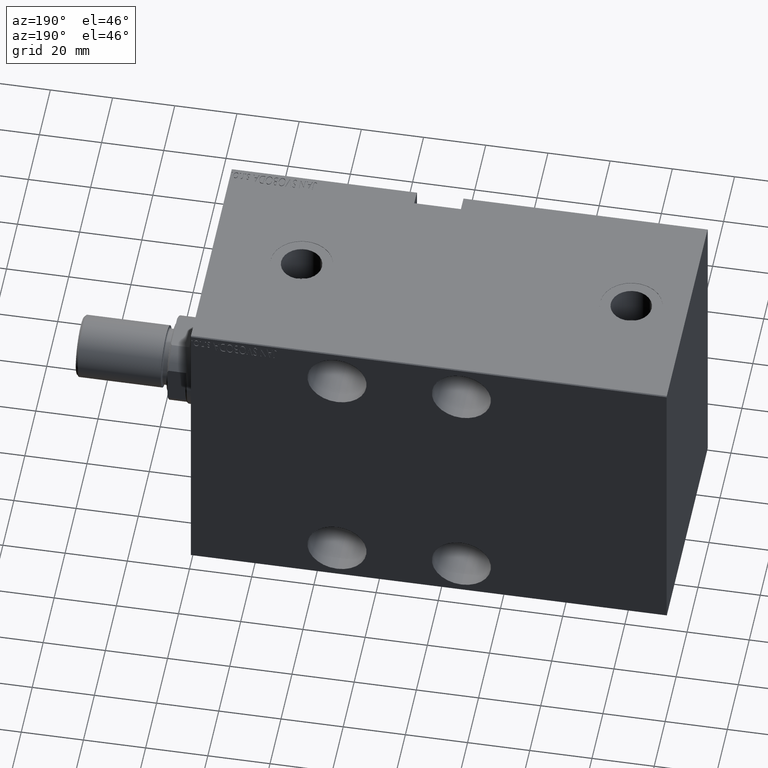
[diagram: clean part render]
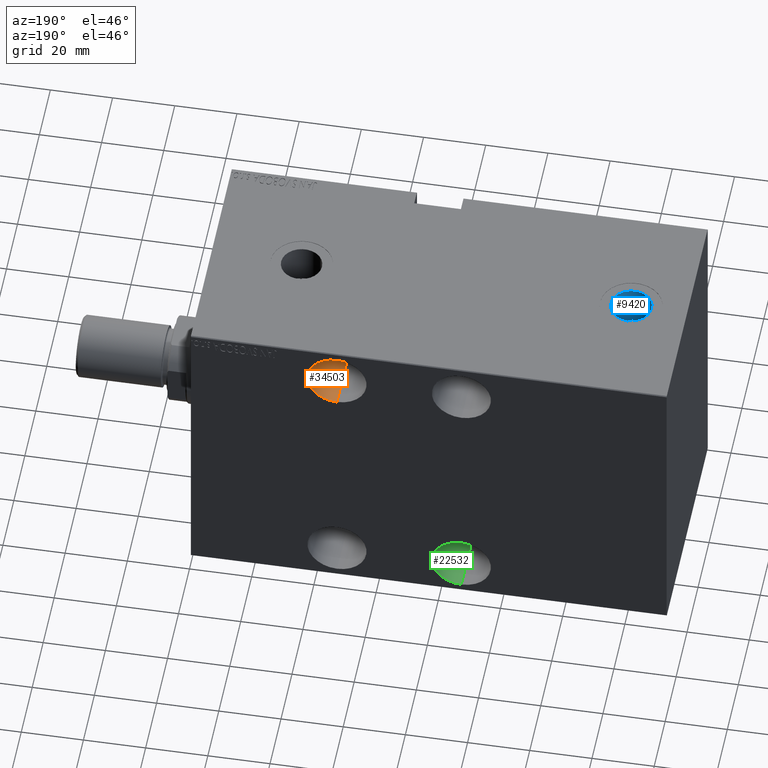
[diagram: same view with three faces highlighted in distinct colors, each labeled with its STEP entity id]
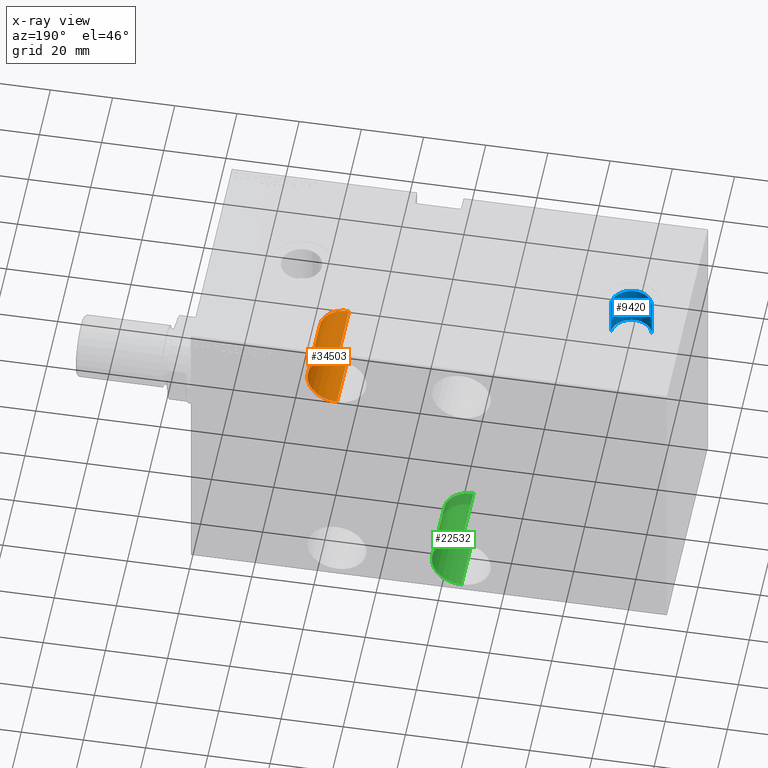
[diagram: x-ray of the same camera — body ghosted, the three highlighted faces saturated]
A machine part, auxiliary view with three faces highlighted in distinct colors.
The next image is the same camera in x-ray (body ghosted, the three faces saturated) — at least one of them is partly hidden behind the body in this view.
Their STEP definitions:

[orange] entity #34503 — the highlighted cylindrical surface (edge-blend (fillet) strip) has radius 9.5 mm, axis along (-0, 1, 0).
#110 = CYLINDRICAL_SURFACE ( 'NONE', #27006, 9.500000000000001776 ) ;
#765 = CARTESIAN_POINT ( 'NONE',  ( 47.00000000000000711, -15.49999999999999289, 38.00000000000001421 ) ) ;
#929 = CARTESIAN_POINT ( 'NONE',  ( 47.00000000000000711, -15.49999999999999289, 47.50000000000001421 ) ) ;
#1343 = DIRECTION ( 'NONE',  ( 0.000000000000000000, 0.000000000000000000, -1.000000000000000000 ) ) ;
#2840 = ORIENTED_EDGE ( 'NONE', *, *, #4772, .F. ) ;
#3268 = VERTEX_POINT ( 'NONE', #19837 ) ;
#4758 = CARTESIAN_POINT ( 'NONE',  ( 47.00000000000000711, -15.49999999999999289, 28.50000000000001066 ) ) ;
#4772 = EDGE_CURVE ( 'NONE', #20072, #21741, #37910, .T. ) ;
#5071 = VERTEX_POINT ( 'NONE', #12943 ) ;
#7201 = CARTESIAN_POINT ( 'NONE',  ( 47.00000000000000711, -15.49999999999999289, 28.50000000000001066 ) ) ;
#7413 = CARTESIAN_POINT ( 'NONE',  ( 47.00000000000000711, -15.49999999999999289, 38.00000000000001421 ) ) ;
#7469 = VECTOR ( 'NONE', #14361, 1000.000000000000000 ) ;
#11371 = CARTESIAN_POINT ( 'NONE',  ( 47.00000000000000711, -37.49999999999999289, 28.50000000000001066 ) ) ;
#12943 = CARTESIAN_POINT ( 'NONE',  ( 47.00000000000000711, -15.49999999999999289, 47.50000000000001421 ) ) ;
#14229 = DIRECTION ( 'NONE',  ( -0.000000000000000000, -1.000000000000000000, -0.000000000000000000 ) ) ;
#14361 = DIRECTION ( 'NONE',  ( -0.000000000000000000, -1.000000000000000000, -0.000000000000000000 ) ) ;
#15176 = ORIENTED_EDGE ( 'NONE', *, *, #24241, .T. ) ;
#18332 = CIRCLE ( 'NONE', #40570, 9.500000000000001776 ) ;
#19790 = ORIENTED_EDGE ( 'NONE', *, *, #37040, .F. ) ;
#19837 = CARTESIAN_POINT ( 'NONE',  ( 47.00000000000000711, -37.49999999999999289, 47.50000000000001421 ) ) ;
#20072 = VERTEX_POINT ( 'NONE', #4758 ) ;
#21378 = EDGE_LOOP ( 'NONE', ( #19790, #42562, #15176, #2840 ) ) ;
#21741 = VERTEX_POINT ( 'NONE', #11371 ) ;
#23180 = AXIS2_PLACEMENT_3D ( 'NONE', #31980, #35343, #25037 ) ;
#24241 = EDGE_CURVE ( 'NONE', #3268, #21741, #36767, .T. ) ;
#24767 = DIRECTION ( 'NONE',  ( 0.000000000000000000, 0.000000000000000000, -1.000000000000000000 ) ) ;
#25037 = DIRECTION ( 'NONE',  ( 0.000000000000000000, 0.000000000000000000, -1.000000000000000000 ) ) ;
#27006 = AXIS2_PLACEMENT_3D ( 'NONE', #765, #14229, #24767 ) ;
#27015 = EDGE_CURVE ( 'NONE', #5071, #3268, #35459, .T. ) ;
#27511 = VECTOR ( 'NONE', #28063, 1000.000000000000000 ) ;
#28063 = DIRECTION ( 'NONE',  ( -0.000000000000000000, -1.000000000000000000, -0.000000000000000000 ) ) ;
#31980 = CARTESIAN_POINT ( 'NONE',  ( 47.00000000000000711, -37.49999999999999289, 38.00000000000001421 ) ) ;
#34503 = ADVANCED_FACE ( 'NONE', ( #38432 ), #110, .F. ) ;
#35343 = DIRECTION ( 'NONE',  ( 0.000000000000000000, -1.000000000000000000, 0.000000000000000000 ) ) ;
#35459 = LINE ( 'NONE', #929, #27511 ) ;
#36767 = CIRCLE ( 'NONE', #23180, 9.500000000000001776 ) ;
#37040 = EDGE_CURVE ( 'NONE', #5071, #20072, #18332, .T. ) ;
#37910 = LINE ( 'NONE', #7201, #7469 ) ;
#38432 = FACE_OUTER_BOUND ( 'NONE', #21378, .T. ) ;
#38565 = DIRECTION ( 'NONE',  ( 0.000000000000000000, -1.000000000000000000, 0.000000000000000000 ) ) ;
#40570 = AXIS2_PLACEMENT_3D ( 'NONE', #7413, #38565, #1343 ) ;
#42562 = ORIENTED_EDGE ( 'NONE', *, *, #27015, .T. ) ;

[blue] entity #9420 — the highlighted cylindrical surface (edge-blend (fillet) strip) has radius 6.58 mm, axis along (0, -0, 1).
#856 = EDGE_CURVE ( 'NONE', #13267, #30839, #1029, .T. ) ;
#1029 = CIRCLE ( 'NONE', #38995, 6.580000000000030269 ) ;
#4617 = CIRCLE ( 'NONE', #42527, 6.580000000000030269 ) ;
#5143 = CARTESIAN_POINT ( 'NONE',  ( 128.4199999999999875, 8.058175938389604224E-16, 36.74000000000000199 ) ) ;
#5615 = EDGE_CURVE ( 'NONE', #25891, #17486, #4617, .T. ) ;
#6567 = DIRECTION ( 'NONE',  ( 1.000000000000000000, 0.000000000000000000, 0.000000000000000000 ) ) ;
#6622 = CARTESIAN_POINT ( 'NONE',  ( 135.0000000000000000, 0.000000000000000000, 36.74000000000000199 ) ) ;
#9109 = CARTESIAN_POINT ( 'NONE',  ( 128.4199999999999875, 8.058175938389589433E-16, 49.89999999999999858 ) ) ;
#9212 = DIRECTION ( 'NONE',  ( 1.000000000000000000, 0.000000000000000000, 0.000000000000000000 ) ) ;
#9420 = ADVANCED_FACE ( 'NONE', ( #11667 ), #25352, .F. ) ;
#10867 = CARTESIAN_POINT ( 'NONE',  ( 141.5800000000000409, 0.000000000000000000, 49.89999999999999858 ) ) ;
#11667 = FACE_OUTER_BOUND ( 'NONE', #32807, .T. ) ;
#13267 = VERTEX_POINT ( 'NONE', #10867 ) ;
#14715 = DIRECTION ( 'NONE',  ( -0.000000000000000000, -0.000000000000000000, 1.000000000000000000 ) ) ;
#17486 = VERTEX_POINT ( 'NONE', #25631 ) ;
#18072 = CARTESIAN_POINT ( 'NONE',  ( 141.5800000000000409, 0.000000000000000000, 36.74000000000000199 ) ) ;
#18115 = ORIENTED_EDGE ( 'NONE', *, *, #21352, .F. ) ;
#18126 = EDGE_CURVE ( 'NONE', #25891, #13267, #24819, .T. ) ;
#18834 = DIRECTION ( 'NONE',  ( 0.000000000000000000, 0.000000000000000000, 1.000000000000000000 ) ) ;
#21352 = EDGE_CURVE ( 'NONE', #17486, #30839, #35862, .T. ) ;
#22294 = ORIENTED_EDGE ( 'NONE', *, *, #856, .T. ) ;
#22629 = AXIS2_PLACEMENT_3D ( 'NONE', #6622, #30607, #41129 ) ;
#24106 = CARTESIAN_POINT ( 'NONE',  ( 141.5800000000000409, 0.000000000000000000, 36.74000000000000199 ) ) ;
#24819 = LINE ( 'NONE', #18072, #35251 ) ;
#25352 = CYLINDRICAL_SURFACE ( 'NONE', #22629, 6.580000000000030269 ) ;
#25631 = CARTESIAN_POINT ( 'NONE',  ( 128.4199999999999875, 8.058175938389589433E-16, 36.74000000000000199 ) ) ;
#25891 = VERTEX_POINT ( 'NONE', #24106 ) ;
#28124 = ORIENTED_EDGE ( 'NONE', *, *, #5615, .F. ) ;
#29333 = ORIENTED_EDGE ( 'NONE', *, *, #18126, .T. ) ;
#30327 = DIRECTION ( 'NONE',  ( 0.000000000000000000, 0.000000000000000000, 1.000000000000000000 ) ) ;
#30607 = DIRECTION ( 'NONE',  ( -0.000000000000000000, -0.000000000000000000, 1.000000000000000000 ) ) ;
#30839 = VERTEX_POINT ( 'NONE', #9109 ) ;
#30986 = CARTESIAN_POINT ( 'NONE',  ( 135.0000000000000000, 0.000000000000000000, 49.89999999999999858 ) ) ;
#32807 = EDGE_LOOP ( 'NONE', ( #18115, #28124, #29333, #22294 ) ) ;
#35251 = VECTOR ( 'NONE', #14715, 1000.000000000000000 ) ;
#35862 = LINE ( 'NONE', #5143, #43869 ) ;
#36336 = CARTESIAN_POINT ( 'NONE',  ( 135.0000000000000000, 0.000000000000000000, 36.74000000000000199 ) ) ;
#38995 = AXIS2_PLACEMENT_3D ( 'NONE', #30986, #30327, #6567 ) ;
#41129 = DIRECTION ( 'NONE',  ( 1.000000000000000000, 0.000000000000000000, 0.000000000000000000 ) ) ;
#42527 = AXIS2_PLACEMENT_3D ( 'NONE', #36336, #18834, #9212 ) ;
#43033 = DIRECTION ( 'NONE',  ( -0.000000000000000000, -0.000000000000000000, 1.000000000000000000 ) ) ;
#43869 = VECTOR ( 'NONE', #43033, 1000.000000000000000 ) ;

[green] entity #22532 — the highlighted cylindrical surface (edge-blend (fillet) strip) has radius 9.5 mm, axis along (-0, 1, 0).
#405 = EDGE_CURVE ( 'NONE', #31154, #18495, #38696, .T. ) ;
#612 = CARTESIAN_POINT ( 'NONE',  ( 87.00000000000000000, -37.49999999999999289, -37.99999999999999289 ) ) ;
#1481 = CARTESIAN_POINT ( 'NONE',  ( 87.00000000000000000, -15.49999999999999289, -47.49999999999998579 ) ) ;
#1512 = VERTEX_POINT ( 'NONE', #19711 ) ;
#1847 = CARTESIAN_POINT ( 'NONE',  ( 87.00000000000000000, -15.49999999999999289, -37.99999999999999289 ) ) ;
#2082 = DIRECTION ( 'NONE',  ( -0.000000000000000000, -1.000000000000000000, -0.000000000000000000 ) ) ;
#3136 = LINE ( 'NONE', #20826, #6242 ) ;
#3980 = DIRECTION ( 'NONE',  ( 0.000000000000000000, -1.000000000000000000, 0.000000000000000000 ) ) ;
#6242 = VECTOR ( 'NONE', #19963, 1000.000000000000000 ) ;
#7375 = AXIS2_PLACEMENT_3D ( 'NONE', #1847, #2082, #30089 ) ;
#9252 = FACE_OUTER_BOUND ( 'NONE', #28800, .T. ) ;
#9940 = EDGE_CURVE ( 'NONE', #34488, #18495, #29823, .T. ) ;
#10483 = DIRECTION ( 'NONE',  ( 0.000000000000000000, 0.000000000000000000, -1.000000000000000000 ) ) ;
#11626 = ORIENTED_EDGE ( 'NONE', *, *, #9940, .T. ) ;
#12915 = CARTESIAN_POINT ( 'NONE',  ( 87.00000000000000000, -37.49999999999999289, -28.49999999999999645 ) ) ;
#15152 = DIRECTION ( 'NONE',  ( -0.000000000000000000, -1.000000000000000000, -0.000000000000000000 ) ) ;
#16584 = DIRECTION ( 'NONE',  ( 0.000000000000000000, 0.000000000000000000, -1.000000000000000000 ) ) ;
#16804 = EDGE_CURVE ( 'NONE', #1512, #31154, #38797, .T. ) ;
#18054 = AXIS2_PLACEMENT_3D ( 'NONE', #27554, #20390, #16584 ) ;
#18495 = VERTEX_POINT ( 'NONE', #42171 ) ;
#18655 = ORIENTED_EDGE ( 'NONE', *, *, #16804, .F. ) ;
#19711 = CARTESIAN_POINT ( 'NONE',  ( 87.00000000000000000, -15.49999999999999289, -28.49999999999999645 ) ) ;
#19963 = DIRECTION ( 'NONE',  ( -0.000000000000000000, -1.000000000000000000, -0.000000000000000000 ) ) ;
#20390 = DIRECTION ( 'NONE',  ( 0.000000000000000000, -1.000000000000000000, 0.000000000000000000 ) ) ;
#20826 = CARTESIAN_POINT ( 'NONE',  ( 87.00000000000000000, -15.49999999999999289, -28.49999999999999645 ) ) ;
#22532 = ADVANCED_FACE ( 'NONE', ( #9252 ), #26050, .F. ) ;
#25826 = ORIENTED_EDGE ( 'NONE', *, *, #405, .F. ) ;
#26050 = CYLINDRICAL_SURFACE ( 'NONE', #7375, 9.499999999999994671 ) ;
#27554 = CARTESIAN_POINT ( 'NONE',  ( 87.00000000000000000, -15.49999999999999289, -37.99999999999999289 ) ) ;
#28800 = EDGE_LOOP ( 'NONE', ( #18655, #36396, #11626, #25826 ) ) ;
#29823 = CIRCLE ( 'NONE', #39127, 9.499999999999994671 ) ;
#30089 = DIRECTION ( 'NONE',  ( 0.000000000000000000, 0.000000000000000000, -1.000000000000000000 ) ) ;
#31154 = VERTEX_POINT ( 'NONE', #36625 ) ;
#34488 = VERTEX_POINT ( 'NONE', #12915 ) ;
#36396 = ORIENTED_EDGE ( 'NONE', *, *, #38043, .T. ) ;
#36625 = CARTESIAN_POINT ( 'NONE',  ( 87.00000000000000000, -15.49999999999999289, -47.49999999999998579 ) ) ;
#38043 = EDGE_CURVE ( 'NONE', #1512, #34488, #3136, .T. ) ;
#38221 = VECTOR ( 'NONE', #15152, 1000.000000000000000 ) ;
#38696 = LINE ( 'NONE', #1481, #38221 ) ;
#38797 = CIRCLE ( 'NONE', #18054, 9.499999999999994671 ) ;
#39127 = AXIS2_PLACEMENT_3D ( 'NONE', #612, #3980, #10483 ) ;
#42171 = CARTESIAN_POINT ( 'NONE',  ( 87.00000000000000000, -37.49999999999999289, -47.49999999999998579 ) ) ;